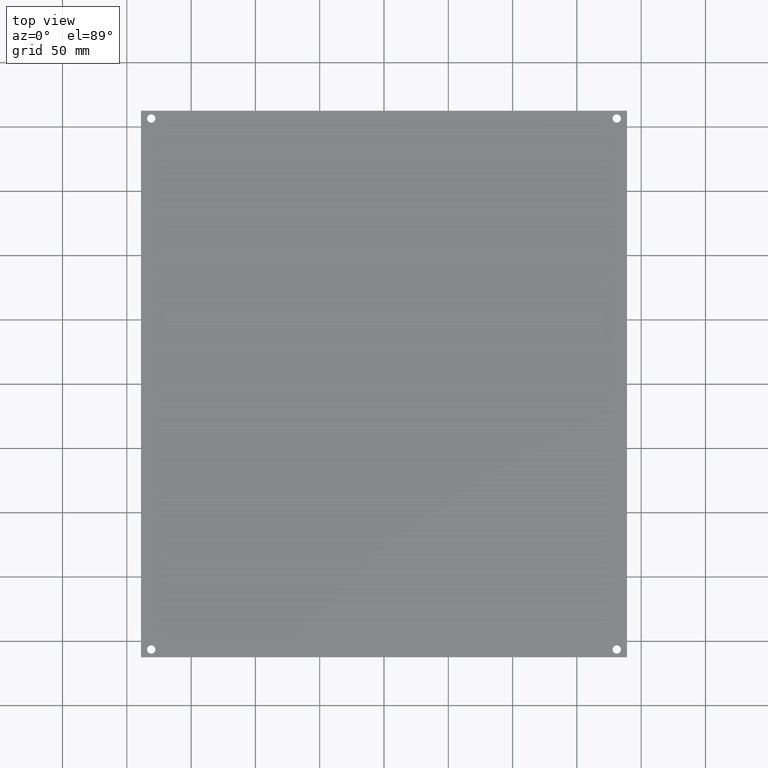
[diagram: clean part render]
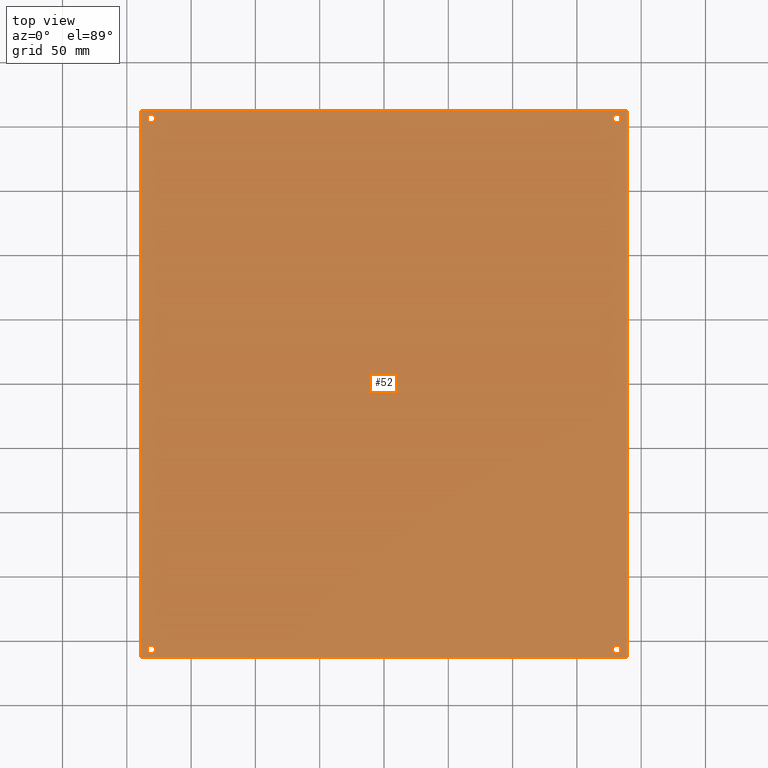
[diagram: same view with one face highlighted and labeled with its STEP entity id]
A machine part, top view. The second image highlights one B-rep face of the part: STEP entity #52.
In plain terms, the highlighted planar face has unit normal (-0, 0, 1).
Its self-contained STEP definition (entity closure, byte-faithful):
#16 = EDGE_CURVE ( 'NONE', #66, #68, #377, .T. ) ;
#47 = EDGE_CURVE ( 'NONE', #63, #48, #227, .T. ) ;
#48 = VERTEX_POINT ( 'NONE', #223 ) ;
#49 = EDGE_LOOP ( 'NONE', ( #91, #92 ) ) ;
#50 = EDGE_CURVE ( 'NONE', #76, #78, #222, .T. ) ;
#51 = VERTEX_POINT ( 'NONE', #218 ) ;
#52 = ADVANCED_FACE ( 'NONE', ( #217, #216, #215, #214, #213 ), #212, .T. ) ;
#53 = ORIENTED_EDGE ( 'NONE', *, *, #75, .T. ) ;
#54 = EDGE_CURVE ( 'NONE', #51, #102, #207, .T. ) ;
#55 = ORIENTED_EDGE ( 'NONE', *, *, #70, .F. ) ;
#56 = ORIENTED_EDGE ( 'NONE', *, *, #57, .F. ) ;
#57 = EDGE_CURVE ( 'NONE', #68, #66, #202, .T. ) ;
#58 = EDGE_LOOP ( 'NONE', ( #90, #106 ) ) ;
#61 = EDGE_CURVE ( 'NONE', #102, #51, #193, .T. ) ;
#62 = ORIENTED_EDGE ( 'NONE', *, *, #47, .T. ) ;
#63 = VERTEX_POINT ( 'NONE', #188 ) ;
#66 = VERTEX_POINT ( 'NONE', #186 ) ;
#67 = VERTEX_POINT ( 'NONE', #185 ) ;
#68 = VERTEX_POINT ( 'NONE', #184 ) ;
#70 = EDGE_CURVE ( 'NONE', #71, #67, #182, .T. ) ;
#71 = VERTEX_POINT ( 'NONE', #177 ) ;
#75 = EDGE_CURVE ( 'NONE', #48, #76, #176, .T. ) ;
#76 = VERTEX_POINT ( 'NONE', #365 ) ;
#77 = ORIENTED_EDGE ( 'NONE', *, *, #50, .T. ) ;
#78 = VERTEX_POINT ( 'NONE', #364 ) ;
#79 = EDGE_CURVE ( 'NONE', #67, #71, #363, .T. ) ;
#90 = ORIENTED_EDGE ( 'NONE', *, *, #135, .F. ) ;
#91 = ORIENTED_EDGE ( 'NONE', *, *, #54, .F. ) ;
#92 = ORIENTED_EDGE ( 'NONE', *, *, #61, .F. ) ;
#93 = EDGE_LOOP ( 'NONE', ( #62, #53, #77, #99 ) ) ;
#94 = ORIENTED_EDGE ( 'NONE', *, *, #79, .F. ) ;
#97 = EDGE_LOOP ( 'NONE', ( #55, #94 ) ) ;
#99 = ORIENTED_EDGE ( 'NONE', *, *, #103, .T. ) ;
#102 = VERTEX_POINT ( 'NONE', #328 ) ;
#103 = EDGE_CURVE ( 'NONE', #78, #63, #327, .T. ) ;
#104 = EDGE_LOOP ( 'NONE', ( #105, #56 ) ) ;
#105 = ORIENTED_EDGE ( 'NONE', *, *, #16, .F. ) ;
#106 = ORIENTED_EDGE ( 'NONE', *, *, #107, .F. ) ;
#107 = EDGE_CURVE ( 'NONE', #120, #136, #323, .T. ) ;
#120 = VERTEX_POINT ( 'NONE', #301 ) ;
#135 = EDGE_CURVE ( 'NONE', #136, #120, #406, .T. ) ;
#136 = VERTEX_POINT ( 'NONE', #419 ) ;
#176 = LINE ( 'NONE', #368, #367 ) ;
#177 = CARTESIAN_POINT ( 'NONE',  ( 177.7500000000000000, -206.5000000000000000, 2.000000000000000000 ) ) ;
#178 = DIRECTION ( 'NONE',  ( 1.000000000000000000, 0.0000000000000000000, 0.0000000000000000000 ) ) ;
#179 = DIRECTION ( 'NONE',  ( 0.0000000000000000000, 0.0000000000000000000, 1.000000000000000000 ) ) ;
#180 = CARTESIAN_POINT ( 'NONE',  ( 181.0000000000000000, -206.5000000000000000, 2.000000000000000000 ) ) ;
#181 = AXIS2_PLACEMENT_3D ( 'NONE', #180, #179, #178 ) ;
#182 = CIRCLE ( 'NONE', #181, 3.250000000000002700 ) ;
#184 = CARTESIAN_POINT ( 'NONE',  ( 184.2500000000000000, 206.5000000000000000, 2.000000000000000000 ) ) ;
#185 = CARTESIAN_POINT ( 'NONE',  ( 184.2500000000000000, -206.5000000000000000, 2.000000000000000000 ) ) ;
#186 = CARTESIAN_POINT ( 'NONE',  ( 177.7500000000000000, 206.5000000000000000, 2.000000000000000000 ) ) ;
#188 = CARTESIAN_POINT ( 'NONE',  ( -189.0000000000000000, 212.5000000000000000, 2.000000000000000000 ) ) ;
#189 = DIRECTION ( 'NONE',  ( 1.000000000000000000, 0.0000000000000000000, 0.0000000000000000000 ) ) ;
#190 = DIRECTION ( 'NONE',  ( 0.0000000000000000000, 0.0000000000000000000, 1.000000000000000000 ) ) ;
#191 = CARTESIAN_POINT ( 'NONE',  ( -181.0000000000000000, 206.5000000000000000, 2.000000000000000000 ) ) ;
#192 = AXIS2_PLACEMENT_3D ( 'NONE', #191, #190, #189 ) ;
#193 = CIRCLE ( 'NONE', #192, 3.250000000000002700 ) ;
#198 = DIRECTION ( 'NONE',  ( 1.000000000000000000, 0.0000000000000000000, 0.0000000000000000000 ) ) ;
#199 = DIRECTION ( 'NONE',  ( 0.0000000000000000000, 0.0000000000000000000, 1.000000000000000000 ) ) ;
#200 = CARTESIAN_POINT ( 'NONE',  ( 181.0000000000000000, 206.5000000000000000, 2.000000000000000000 ) ) ;
#201 = AXIS2_PLACEMENT_3D ( 'NONE', #200, #199, #198 ) ;
#202 = CIRCLE ( 'NONE', #201, 3.250000000000002700 ) ;
#203 = DIRECTION ( 'NONE',  ( 1.000000000000000000, 0.0000000000000000000, 0.0000000000000000000 ) ) ;
#204 = DIRECTION ( 'NONE',  ( 0.0000000000000000000, 0.0000000000000000000, 1.000000000000000000 ) ) ;
#205 = CARTESIAN_POINT ( 'NONE',  ( -181.0000000000000000, 206.5000000000000000, 2.000000000000000000 ) ) ;
#206 = AXIS2_PLACEMENT_3D ( 'NONE', #205, #204, #203 ) ;
#207 = CIRCLE ( 'NONE', #206, 3.250000000000002700 ) ;
#208 = DIRECTION ( 'NONE',  ( 1.000000000000000000, 0.0000000000000000000, 0.0000000000000000000 ) ) ;
#209 = DIRECTION ( 'NONE',  ( -0.0000000000000000000, 0.0000000000000000000, 1.000000000000000000 ) ) ;
#210 = CARTESIAN_POINT ( 'NONE',  ( -189.0000000000000300, -212.5000000000000000, 2.000000000000000000 ) ) ;
#211 = AXIS2_PLACEMENT_3D ( 'NONE', #210, #209, #208 ) ;
#212 = PLANE ( 'NONE',  #211 ) ;
#213 = FACE_BOUND ( 'NONE', #58, .T. ) ;
#214 = FACE_BOUND ( 'NONE', #104, .T. ) ;
#215 = FACE_OUTER_BOUND ( 'NONE', #93, .T. ) ;
#216 = FACE_BOUND ( 'NONE', #49, .T. ) ;
#217 = FACE_BOUND ( 'NONE', #97, .T. ) ;
#218 = CARTESIAN_POINT ( 'NONE',  ( -184.2500000000000000, 206.5000000000000000, 2.000000000000000000 ) ) ;
#219 = DIRECTION ( 'NONE',  ( -6.530723674265626900E-017, 1.000000000000000000, -0.0000000000000000000 ) ) ;
#220 = VECTOR ( 'NONE', #219, 1000.000000000000000 ) ;
#221 = CARTESIAN_POINT ( 'NONE',  ( 189.0000000000000000, 212.5000000000000000, 2.000000000000000000 ) ) ;
#222 = LINE ( 'NONE', #221, #220 ) ;
#223 = CARTESIAN_POINT ( 'NONE',  ( -189.0000000000000300, -212.5000000000000000, 2.000000000000000000 ) ) ;
#224 = DIRECTION ( 'NONE',  ( -6.530723674265626900E-017, -1.000000000000000000, 0.0000000000000000000 ) ) ;
#225 = VECTOR ( 'NONE', #224, 1000.000000000000000 ) ;
#226 = CARTESIAN_POINT ( 'NONE',  ( -189.0000000000000000, 212.5000000000000000, 2.000000000000000000 ) ) ;
#227 = LINE ( 'NONE', #226, #225 ) ;
#301 = CARTESIAN_POINT ( 'NONE',  ( -177.7500000000000000, -206.5000000000000000, 2.000000000000000000 ) ) ;
#319 = DIRECTION ( 'NONE',  ( 1.000000000000000000, 0.0000000000000000000, 0.0000000000000000000 ) ) ;
#320 = DIRECTION ( 'NONE',  ( 0.0000000000000000000, 0.0000000000000000000, 1.000000000000000000 ) ) ;
#321 = CARTESIAN_POINT ( 'NONE',  ( -181.0000000000000000, -206.5000000000000000, 2.000000000000000000 ) ) ;
#322 = AXIS2_PLACEMENT_3D ( 'NONE', #321, #320, #319 ) ;
#323 = CIRCLE ( 'NONE', #322, 3.250000000000002700 ) ;
#324 = DIRECTION ( 'NONE',  ( -1.000000000000000000, -0.0000000000000000000, -0.0000000000000000000 ) ) ;
#325 = VECTOR ( 'NONE', #324, 1000.000000000000000 ) ;
#326 = CARTESIAN_POINT ( 'NONE',  ( -189.0000000000000000, 212.5000000000000000, 2.000000000000000000 ) ) ;
#327 = LINE ( 'NONE', #326, #325 ) ;
#328 = CARTESIAN_POINT ( 'NONE',  ( -177.7500000000000000, 206.5000000000000000, 2.000000000000000000 ) ) ;
#359 = DIRECTION ( 'NONE',  ( 1.000000000000000000, 0.0000000000000000000, 0.0000000000000000000 ) ) ;
#360 = DIRECTION ( 'NONE',  ( 0.0000000000000000000, 0.0000000000000000000, 1.000000000000000000 ) ) ;
#361 = CARTESIAN_POINT ( 'NONE',  ( 181.0000000000000000, -206.5000000000000000, 2.000000000000000000 ) ) ;
#362 = AXIS2_PLACEMENT_3D ( 'NONE', #361, #360, #359 ) ;
#363 = CIRCLE ( 'NONE', #362, 3.250000000000002700 ) ;
#364 = CARTESIAN_POINT ( 'NONE',  ( 189.0000000000000000, 212.5000000000000000, 2.000000000000000000 ) ) ;
#365 = CARTESIAN_POINT ( 'NONE',  ( 189.0000000000000300, -212.5000000000000000, 2.000000000000000000 ) ) ;
#366 = DIRECTION ( 'NONE',  ( 1.000000000000000000, 0.0000000000000000000, 0.0000000000000000000 ) ) ;
#367 = VECTOR ( 'NONE', #366, 1000.000000000000000 ) ;
#368 = CARTESIAN_POINT ( 'NONE',  ( -189.0000000000000300, -212.5000000000000000, 2.000000000000000000 ) ) ;
#370 = DIRECTION ( 'NONE',  ( 1.000000000000000000, 0.0000000000000000000, 0.0000000000000000000 ) ) ;
#371 = DIRECTION ( 'NONE',  ( 0.0000000000000000000, 0.0000000000000000000, 1.000000000000000000 ) ) ;
#372 = CARTESIAN_POINT ( 'NONE',  ( 181.0000000000000000, 206.5000000000000000, 2.000000000000000000 ) ) ;
#373 = AXIS2_PLACEMENT_3D ( 'NONE', #372, #371, #370 ) ;
#377 = CIRCLE ( 'NONE', #373, 3.250000000000002700 ) ;
#406 = CIRCLE ( 'NONE', #423, 3.250000000000002700 ) ;
#419 = CARTESIAN_POINT ( 'NONE',  ( -184.2500000000000000, -206.5000000000000000, 2.000000000000000000 ) ) ;
#420 = DIRECTION ( 'NONE',  ( 1.000000000000000000, 0.0000000000000000000, 0.0000000000000000000 ) ) ;
#421 = DIRECTION ( 'NONE',  ( 0.0000000000000000000, 0.0000000000000000000, 1.000000000000000000 ) ) ;
#422 = CARTESIAN_POINT ( 'NONE',  ( -181.0000000000000000, -206.5000000000000000, 2.000000000000000000 ) ) ;
#423 = AXIS2_PLACEMENT_3D ( 'NONE', #422, #421, #420 ) ;